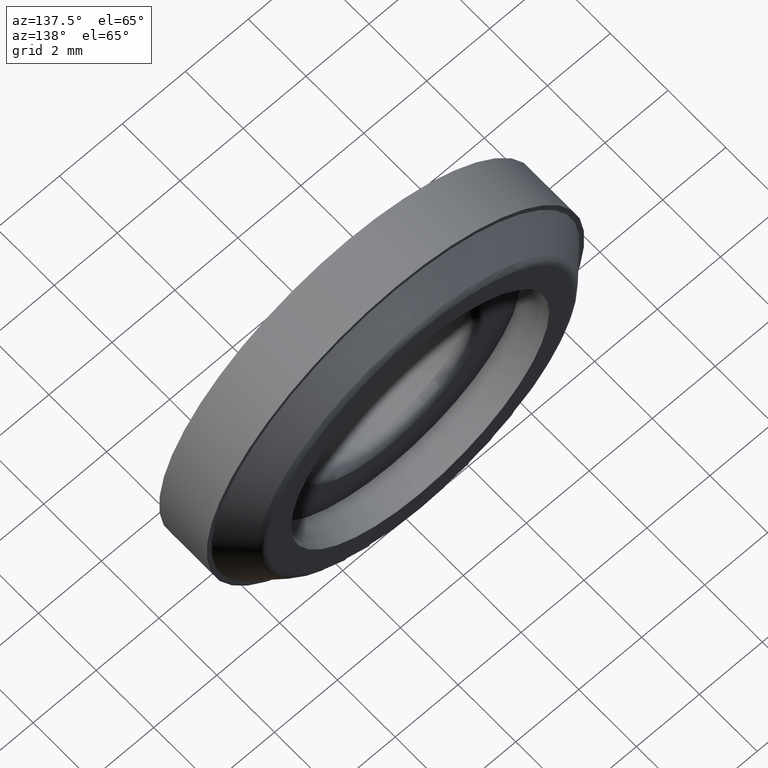
[diagram: clean part render]
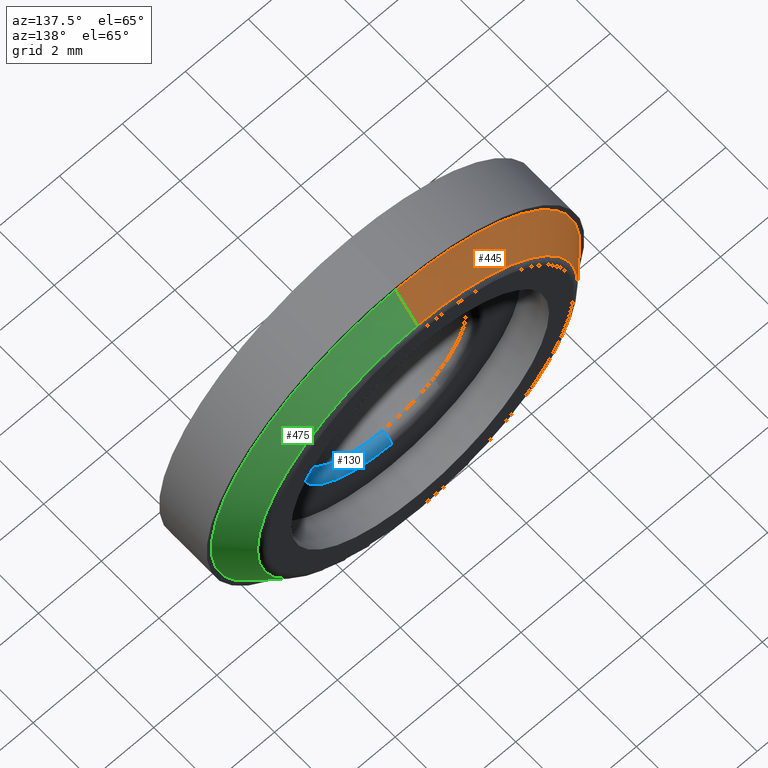
[diagram: same view with three faces highlighted in distinct colors, each labeled with its STEP entity id]
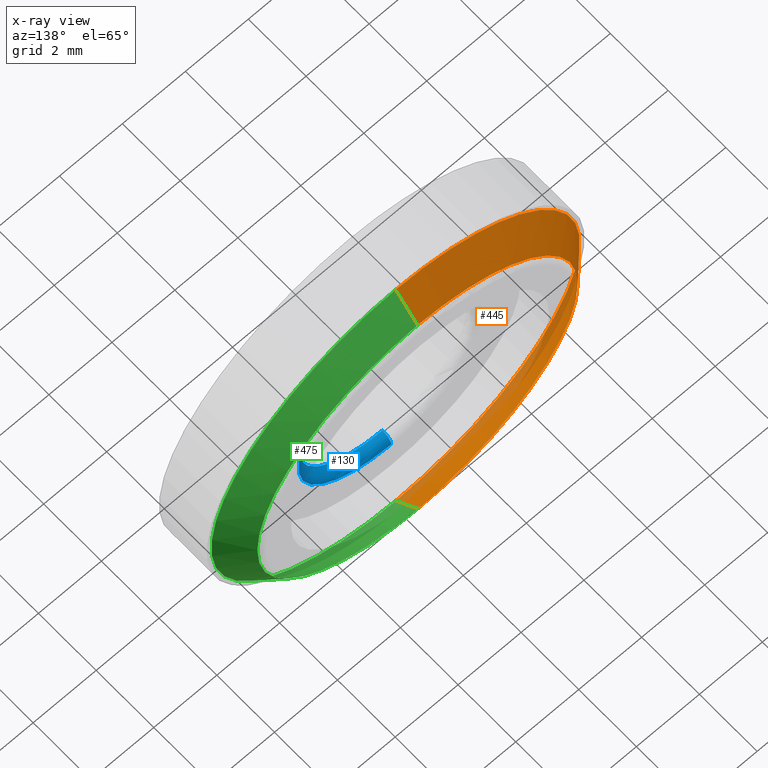
[diagram: x-ray of the same camera — body ghosted, the three highlighted faces saturated]
A machine part, auxiliary view with three faces highlighted in distinct colors.
The next image is the same camera in x-ray (body ghosted, the three faces saturated) — at least one of them is partly hidden behind the body in this view.
Their STEP definitions:

[orange] entity #445 — the highlighted conical surface has half-angle 45 deg.
#8 = DIRECTION ( 'NONE',  ( 0.0000000000000000000, 0.0000000000000000000, -1.000000000000000000 ) ) ;
#13 = VERTEX_POINT ( 'NONE', #41 ) ;
#35 = DIRECTION ( 'NONE',  ( 0.0000000000000000000, -1.000000000000000000, 0.0000000000000000000 ) ) ;
#41 = CARTESIAN_POINT ( 'NONE',  ( 6.697512496811174300E-016, 2.412132034355963100, 5.087867965644041300 ) ) ;
#46 = EDGE_CURVE ( 'NONE', #13, #104, #255, .T. ) ;
#56 = VERTEX_POINT ( 'NONE', #310 ) ;
#57 = CARTESIAN_POINT ( 'NONE',  ( 7.164183775012018400E-016, 1.649999999999999900, 5.850000000000002300 ) ) ;
#63 = ORIENTED_EDGE ( 'NONE', *, *, #173, .T. ) ;
#67 = EDGE_CURVE ( 'NONE', #56, #290, #238, .T. ) ;
#82 = CARTESIAN_POINT ( 'NONE',  ( 0.0000000000000000000, 2.412132034355963100, 0.0000000000000000000 ) ) ;
#86 = LINE ( 'NONE', #57, #452 ) ;
#89 = AXIS2_PLACEMENT_3D ( 'NONE', #201, #35, #482 ) ;
#104 = VERTEX_POINT ( 'NONE', #123 ) ;
#109 = CARTESIAN_POINT ( 'NONE',  ( 7.164183775012018400E-016, 1.649999999999999900, 5.850000000000002300 ) ) ;
#123 = CARTESIAN_POINT ( 'NONE',  ( 0.0000000000000000000, 2.412132034355963100, -5.087867965644041300 ) ) ;
#137 = LINE ( 'NONE', #253, #500 ) ;
#173 = EDGE_CURVE ( 'NONE', #104, #56, #137, .T. ) ;
#179 = ORIENTED_EDGE ( 'NONE', *, *, #46, .T. ) ;
#194 = DIRECTION ( 'NONE',  ( -0.0000000000000000000, 1.000000000000000000, -0.0000000000000000000 ) ) ;
#199 = DIRECTION ( 'NONE',  ( 0.0000000000000000000, -0.7071067811865489100, -0.7071067811865462400 ) ) ;
#201 = CARTESIAN_POINT ( 'NONE',  ( 0.0000000000000000000, 1.649999999999999900, 0.0000000000000000000 ) ) ;
#208 = CONICAL_SURFACE ( 'NONE', #89, 5.850000000000002300, 0.7853981633974463900 ) ;
#238 = CIRCLE ( 'NONE', #256, 5.850000000000002300 ) ;
#253 = CARTESIAN_POINT ( 'NONE',  ( 0.0000000000000000000, 1.649999999999999900, -5.850000000000002300 ) ) ;
#255 = CIRCLE ( 'NONE', #309, 5.087867965644041300 ) ;
#256 = AXIS2_PLACEMENT_3D ( 'NONE', #272, #194, #471 ) ;
#272 = CARTESIAN_POINT ( 'NONE',  ( 0.0000000000000000000, 1.649999999999999900, 0.0000000000000000000 ) ) ;
#290 = VERTEX_POINT ( 'NONE', #109 ) ;
#309 = AXIS2_PLACEMENT_3D ( 'NONE', #82, #339, #8 ) ;
#310 = CARTESIAN_POINT ( 'NONE',  ( 0.0000000000000000000, 1.649999999999999900, -5.850000000000002300 ) ) ;
#326 = ORIENTED_EDGE ( 'NONE', *, *, #456, .F. ) ;
#331 = FACE_OUTER_BOUND ( 'NONE', #434, .T. ) ;
#334 = DIRECTION ( 'NONE',  ( 8.659560562354915600E-017, -0.7071067811865489100, 0.7071067811865462400 ) ) ;
#339 = DIRECTION ( 'NONE',  ( 0.0000000000000000000, -1.000000000000000000, 0.0000000000000000000 ) ) ;
#405 = ORIENTED_EDGE ( 'NONE', *, *, #67, .T. ) ;
#434 = EDGE_LOOP ( 'NONE', ( #326, #179, #63, #405 ) ) ;
#445 = ADVANCED_FACE ( 'NONE', ( #331 ), #208, .T. ) ;
#452 = VECTOR ( 'NONE', #334, 1000.000000000000000 ) ;
#456 = EDGE_CURVE ( 'NONE', #13, #290, #86, .T. ) ;
#471 = DIRECTION ( 'NONE',  ( 0.0000000000000000000, 0.0000000000000000000, 1.000000000000000000 ) ) ;
#482 = DIRECTION ( 'NONE',  ( 0.0000000000000000000, 0.0000000000000000000, -1.000000000000000000 ) ) ;
#500 = VECTOR ( 'NONE', #199, 1000.000000000000000 ) ;

[blue] entity #130 — the highlighted toroidal blend (fillet) surface has major radius 2.95 mm and minor (blend) radius 0.3 mm.
#21 = DIRECTION ( 'NONE',  ( 0.0000000000000000000, 0.0000000000000000000, 1.000000000000000000 ) ) ;
#26 = VERTEX_POINT ( 'NONE', #59 ) ;
#27 = DIRECTION ( 'NONE',  ( 0.0000000000000000000, 0.0000000000000000000, 1.000000000000000000 ) ) ;
#28 = CARTESIAN_POINT ( 'NONE',  ( 0.0000000000000000000, 1.200000000000000200, 0.0000000000000000000 ) ) ;
#29 = CIRCLE ( 'NONE', #407, 0.2999999999999999300 ) ;
#55 = CARTESIAN_POINT ( 'NONE',  ( 3.612708057484691600E-016, 1.200000000000000200, -2.949999999999999300 ) ) ;
#59 = CARTESIAN_POINT ( 'NONE',  ( 3.245314017740485500E-016, 1.200000000000000200, 2.649999999999999500 ) ) ;
#76 = CARTESIAN_POINT ( 'NONE',  ( 0.0000000000000000000, 1.200000000000000200, -2.649999999999999500 ) ) ;
#127 = DIRECTION ( 'NONE',  ( 1.000000000000000000, -0.0000000000000000000, 1.224646799147353200E-016 ) ) ;
#130 = ADVANCED_FACE ( 'NONE', ( #217 ), #224, .T. ) ;
#131 = EDGE_CURVE ( 'NONE', #148, #432, #416, .T. ) ;
#148 = VERTEX_POINT ( 'NONE', #276 ) ;
#158 = AXIS2_PLACEMENT_3D ( 'NONE', #55, #127, #441 ) ;
#159 = DIRECTION ( 'NONE',  ( -0.0000000000000000000, -1.000000000000000000, -0.0000000000000000000 ) ) ;
#163 = CARTESIAN_POINT ( 'NONE',  ( 0.0000000000000000000, 1.200000000000000200, 2.949999999999999300 ) ) ;
#164 = CARTESIAN_POINT ( 'NONE',  ( 0.0000000000000000000, 1.500000000000000000, 2.949999999999999300 ) ) ;
#176 = ORIENTED_EDGE ( 'NONE', *, *, #294, .F. ) ;
#189 = DIRECTION ( 'NONE',  ( 0.0000000000000000000, 1.000000000000000000, 0.0000000000000000000 ) ) ;
#200 = EDGE_CURVE ( 'NONE', #148, #505, #386, .T. ) ;
#217 = FACE_OUTER_BOUND ( 'NONE', #464, .T. ) ;
#224 = TOROIDAL_SURFACE ( 'NONE', #511, 2.949999999999999300, 0.2999999999999999900 ) ;
#265 = CIRCLE ( 'NONE', #454, 2.649999999999999500 ) ;
#276 = CARTESIAN_POINT ( 'NONE',  ( 3.612708057484691600E-016, 1.500000000000000000, -2.949999999999999300 ) ) ;
#283 = ORIENTED_EDGE ( 'NONE', *, *, #340, .F. ) ;
#294 = EDGE_CURVE ( 'NONE', #432, #26, #29, .T. ) ;
#300 = ORIENTED_EDGE ( 'NONE', *, *, #200, .T. ) ;
#340 = EDGE_CURVE ( 'NONE', #26, #505, #265, .T. ) ;
#349 = CARTESIAN_POINT ( 'NONE',  ( 0.0000000000000000000, 1.200000000000000200, 0.0000000000000000000 ) ) ;
#386 = CIRCLE ( 'NONE', #158, 0.2999999999999999300 ) ;
#407 = AXIS2_PLACEMENT_3D ( 'NONE', #163, #440, #504 ) ;
#410 = ORIENTED_EDGE ( 'NONE', *, *, #131, .F. ) ;
#416 = CIRCLE ( 'NONE', #492, 2.949999999999999300 ) ;
#422 = DIRECTION ( 'NONE',  ( 0.0000000000000000000, 1.000000000000000000, 0.0000000000000000000 ) ) ;
#432 = VERTEX_POINT ( 'NONE', #164 ) ;
#440 = DIRECTION ( 'NONE',  ( -1.000000000000000000, 0.0000000000000000000, 0.0000000000000000000 ) ) ;
#441 = DIRECTION ( 'NONE',  ( 1.224646799147353200E-016, 0.0000000000000000000, -1.000000000000000000 ) ) ;
#443 = DIRECTION ( 'NONE',  ( 0.0000000000000000000, 0.0000000000000000000, 1.000000000000000000 ) ) ;
#454 = AXIS2_PLACEMENT_3D ( 'NONE', #349, #422, #21 ) ;
#464 = EDGE_LOOP ( 'NONE', ( #410, #300, #283, #176 ) ) ;
#478 = CARTESIAN_POINT ( 'NONE',  ( 0.0000000000000000000, 1.500000000000000000, 0.0000000000000000000 ) ) ;
#492 = AXIS2_PLACEMENT_3D ( 'NONE', #478, #159, #443 ) ;
#504 = DIRECTION ( 'NONE',  ( 0.0000000000000000000, 0.0000000000000000000, 1.000000000000000000 ) ) ;
#505 = VERTEX_POINT ( 'NONE', #76 ) ;
#511 = AXIS2_PLACEMENT_3D ( 'NONE', #28, #189, #27 ) ;

[green] entity #475 — the highlighted conical surface has half-angle 45 deg.
#13 = VERTEX_POINT ( 'NONE', #41 ) ;
#14 = EDGE_CURVE ( 'NONE', #104, #13, #141, .T. ) ;
#20 = ORIENTED_EDGE ( 'NONE', *, *, #456, .T. ) ;
#41 = CARTESIAN_POINT ( 'NONE',  ( 6.697512496811174300E-016, 2.412132034355963100, 5.087867965644041300 ) ) ;
#45 = DIRECTION ( 'NONE',  ( -0.0000000000000000000, 1.000000000000000000, -0.0000000000000000000 ) ) ;
#56 = VERTEX_POINT ( 'NONE', #310 ) ;
#57 = CARTESIAN_POINT ( 'NONE',  ( 7.164183775012018400E-016, 1.649999999999999900, 5.850000000000002300 ) ) ;
#86 = LINE ( 'NONE', #57, #452 ) ;
#97 = EDGE_LOOP ( 'NONE', ( #273, #20, #483, #233 ) ) ;
#104 = VERTEX_POINT ( 'NONE', #123 ) ;
#109 = CARTESIAN_POINT ( 'NONE',  ( 7.164183775012018400E-016, 1.649999999999999900, 5.850000000000002300 ) ) ;
#122 = AXIS2_PLACEMENT_3D ( 'NONE', #311, #361, #430 ) ;
#123 = CARTESIAN_POINT ( 'NONE',  ( 0.0000000000000000000, 2.412132034355963100, -5.087867965644041300 ) ) ;
#137 = LINE ( 'NONE', #253, #500 ) ;
#141 = CIRCLE ( 'NONE', #293, 5.087867965644041300 ) ;
#173 = EDGE_CURVE ( 'NONE', #104, #56, #137, .T. ) ;
#174 = FACE_OUTER_BOUND ( 'NONE', #97, .T. ) ;
#199 = DIRECTION ( 'NONE',  ( 0.0000000000000000000, -0.7071067811865489100, -0.7071067811865462400 ) ) ;
#233 = ORIENTED_EDGE ( 'NONE', *, *, #173, .F. ) ;
#253 = CARTESIAN_POINT ( 'NONE',  ( 0.0000000000000000000, 1.649999999999999900, -5.850000000000002300 ) ) ;
#259 = CIRCLE ( 'NONE', #353, 5.850000000000002300 ) ;
#264 = EDGE_CURVE ( 'NONE', #290, #56, #259, .T. ) ;
#273 = ORIENTED_EDGE ( 'NONE', *, *, #14, .T. ) ;
#290 = VERTEX_POINT ( 'NONE', #109 ) ;
#292 = CARTESIAN_POINT ( 'NONE',  ( 0.0000000000000000000, 1.649999999999999900, 0.0000000000000000000 ) ) ;
#293 = AXIS2_PLACEMENT_3D ( 'NONE', #409, #466, #336 ) ;
#310 = CARTESIAN_POINT ( 'NONE',  ( 0.0000000000000000000, 1.649999999999999900, -5.850000000000002300 ) ) ;
#311 = CARTESIAN_POINT ( 'NONE',  ( 0.0000000000000000000, 1.649999999999999900, 0.0000000000000000000 ) ) ;
#334 = DIRECTION ( 'NONE',  ( 8.659560562354915600E-017, -0.7071067811865489100, 0.7071067811865462400 ) ) ;
#336 = DIRECTION ( 'NONE',  ( 0.0000000000000000000, 0.0000000000000000000, -1.000000000000000000 ) ) ;
#342 = DIRECTION ( 'NONE',  ( 0.0000000000000000000, 0.0000000000000000000, 1.000000000000000000 ) ) ;
#347 = CONICAL_SURFACE ( 'NONE', #122, 5.850000000000002300, 0.7853981633974463900 ) ;
#353 = AXIS2_PLACEMENT_3D ( 'NONE', #292, #45, #342 ) ;
#361 = DIRECTION ( 'NONE',  ( 0.0000000000000000000, -1.000000000000000000, 0.0000000000000000000 ) ) ;
#409 = CARTESIAN_POINT ( 'NONE',  ( 0.0000000000000000000, 2.412132034355963100, 0.0000000000000000000 ) ) ;
#430 = DIRECTION ( 'NONE',  ( 0.0000000000000000000, 0.0000000000000000000, -1.000000000000000000 ) ) ;
#452 = VECTOR ( 'NONE', #334, 1000.000000000000000 ) ;
#456 = EDGE_CURVE ( 'NONE', #13, #290, #86, .T. ) ;
#466 = DIRECTION ( 'NONE',  ( 0.0000000000000000000, -1.000000000000000000, 0.0000000000000000000 ) ) ;
#475 = ADVANCED_FACE ( 'NONE', ( #174 ), #347, .T. ) ;
#483 = ORIENTED_EDGE ( 'NONE', *, *, #264, .T. ) ;
#500 = VECTOR ( 'NONE', #199, 1000.000000000000000 ) ;